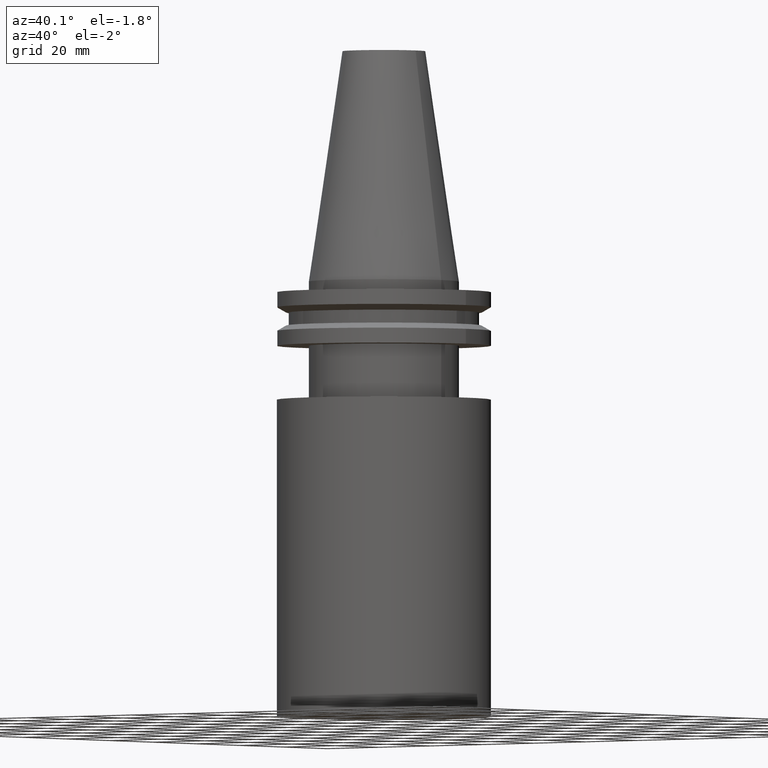
[diagram: clean part render]
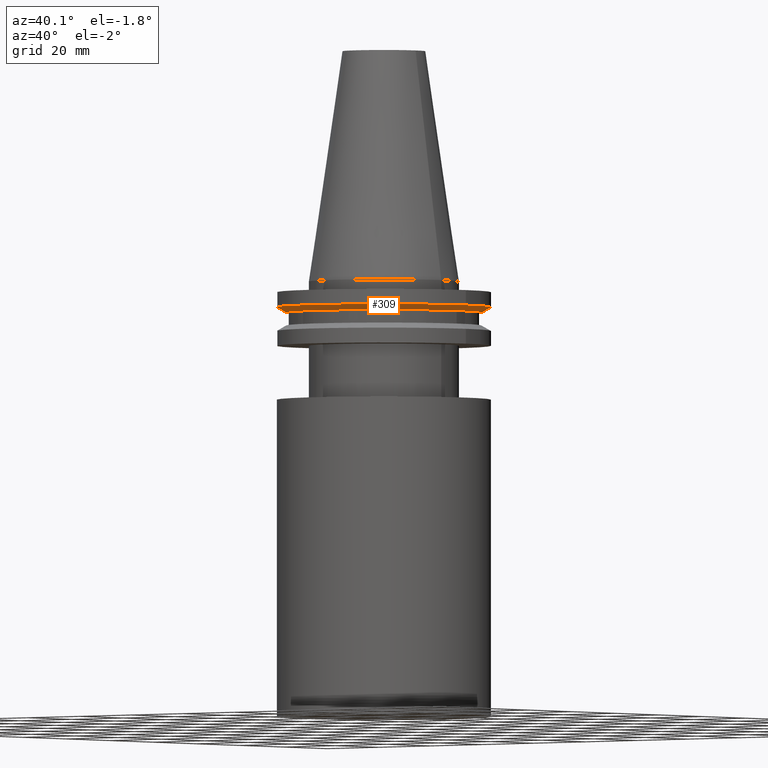
[diagram: same view with one face highlighted and labeled with its STEP entity id]
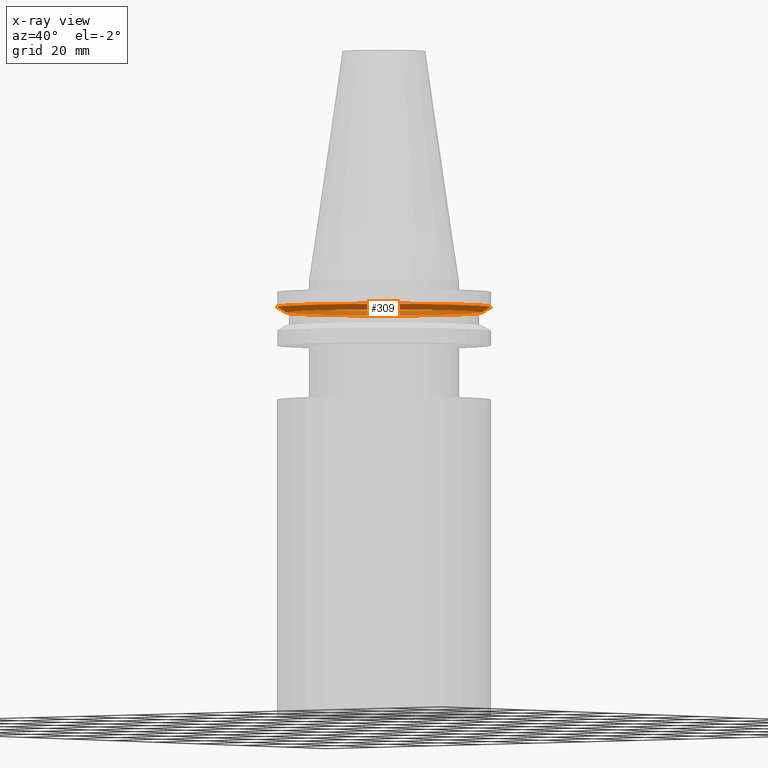
[diagram: x-ray of the same camera — body ghosted, the highlighted face saturated]
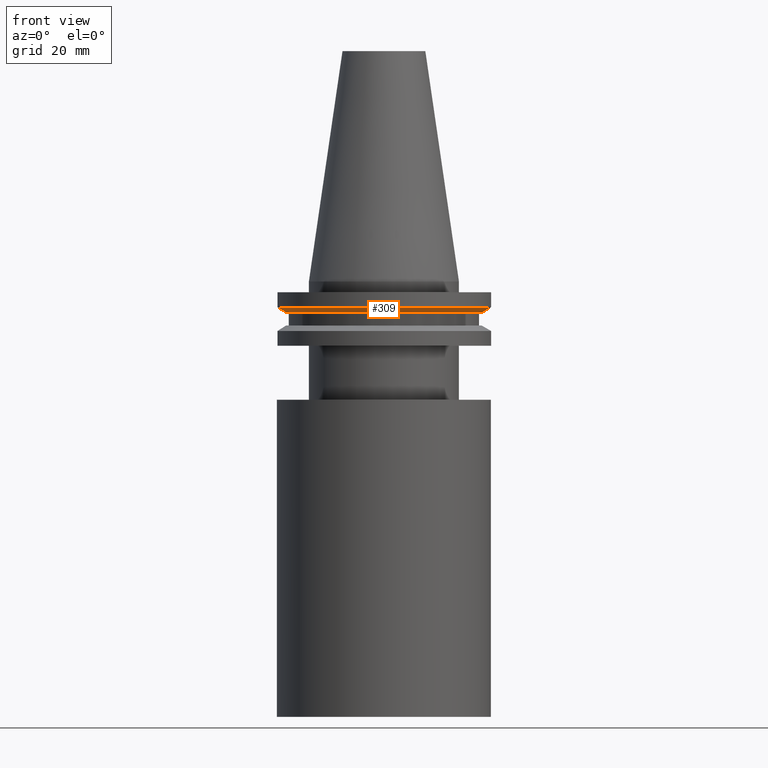
[diagram: same view with one face highlighted and labeled with its STEP entity id]
A machine part, auxiliary view. The second image highlights one B-rep face of the part: STEP entity #309.
The next image is the same camera in x-ray: the body ghosted, the highlighted face saturated — about 40% of this face is hidden behind the body in this view.
A second angle (front view) of the same face is appended — the face is thin or edge-on in the first view.
In plain terms, the highlighted conical surface has half-angle 60 deg.
Its self-contained STEP definition (entity closure, byte-faithful):
#15 = FACE_BOUND ( 'NONE', #159, .T. ) ;
#36 = AXIS2_PLACEMENT_3D ( 'NONE', #256, #346, #348 ) ;
#39 = EDGE_CURVE ( 'NONE', #147, #147, #365, .T. ) ;
#54 = CIRCLE ( 'NONE', #61, 31.75000000000000000 ) ;
#61 = AXIS2_PLACEMENT_3D ( 'NONE', #306, #216, #119 ) ;
#119 = DIRECTION ( 'NONE',  ( 1.000000000000000000, 0.000000000000000000, 0.000000000000000000 ) ) ;
#137 = DIRECTION ( 'NONE',  ( -0.000000000000000000, -0.000000000000000000, 1.000000000000000000 ) ) ;
#147 = VERTEX_POINT ( 'NONE', #361 ) ;
#149 = VERTEX_POINT ( 'NONE', #266 ) ;
#151 = CONICAL_SURFACE ( 'NONE', #206, 28.97919780457007732, 1.047197551196598297 ) ;
#159 = EDGE_LOOP ( 'NONE', ( #337 ) ) ;
#193 = CARTESIAN_POINT ( 'NONE',  ( 0.000000000000000000, 0.000000000000000000, -9.205000000000005400 ) ) ;
#206 = AXIS2_PLACEMENT_3D ( 'NONE', #193, #137, #372 ) ;
#215 = ORIENTED_EDGE ( 'NONE', *, *, #240, .F. ) ;
#216 = DIRECTION ( 'NONE',  ( -0.000000000000000000, -0.000000000000000000, 1.000000000000000000 ) ) ;
#240 = EDGE_CURVE ( 'NONE', #149, #149, #54, .T. ) ;
#256 = CARTESIAN_POINT ( 'NONE',  ( 0.000000000000000000, 0.000000000000000000, -9.205000000000005400 ) ) ;
#266 = CARTESIAN_POINT ( 'NONE',  ( 31.75000000000000000, 0.000000000000000000, -7.605276606597335842 ) ) ;
#284 = FACE_OUTER_BOUND ( 'NONE', #389, .T. ) ;
#306 = CARTESIAN_POINT ( 'NONE',  ( 0.000000000000000000, 0.000000000000000000, -7.605276606597335842 ) ) ;
#309 = ADVANCED_FACE ( 'NONE', ( #284, #15 ), #151, .T. ) ;
#337 = ORIENTED_EDGE ( 'NONE', *, *, #39, .T. ) ;
#346 = DIRECTION ( 'NONE',  ( -0.000000000000000000, -0.000000000000000000, 1.000000000000000000 ) ) ;
#348 = DIRECTION ( 'NONE',  ( 1.000000000000000000, 0.000000000000000000, 0.000000000000000000 ) ) ;
#361 = CARTESIAN_POINT ( 'NONE',  ( 28.97919780457007732, 0.000000000000000000, -9.205000000000005400 ) ) ;
#365 = CIRCLE ( 'NONE', #36, 28.97919780457007732 ) ;
#372 = DIRECTION ( 'NONE',  ( 1.000000000000000000, 0.000000000000000000, 0.000000000000000000 ) ) ;
#389 = EDGE_LOOP ( 'NONE', ( #215 ) ) ;